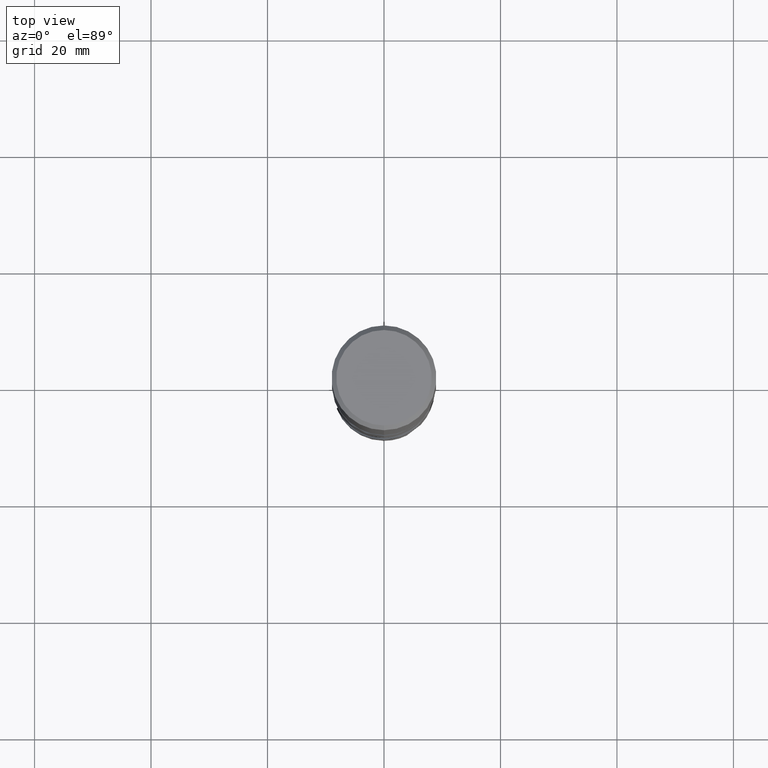
[diagram: clean part render]
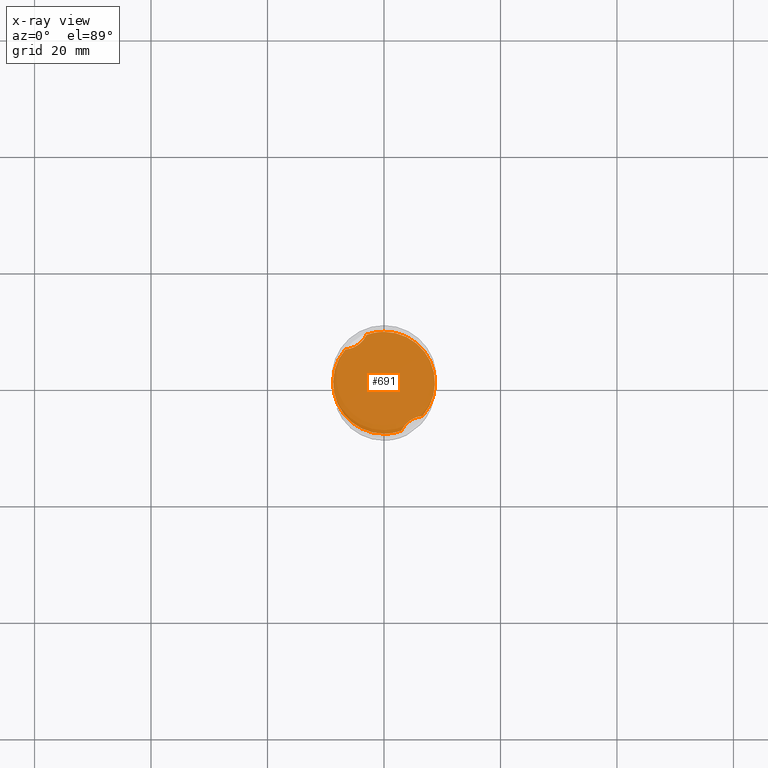
[diagram: x-ray — body ghosted, one internal face saturated and labeled with its STEP entity id]
A machine part, top view, then the same camera in x-ray: the body is ghosted and one INTERNAL B-rep face — a face not visible from any outside direction — is saturated and labeled: STEP entity #691.
In plain terms, the highlighted planar face has unit normal (-0, 0, 1).
Its self-contained STEP definition (entity closure, byte-faithful):
#271=VERTEX_POINT('',#754);
#315=EDGE_CURVE('',#271,#445,#806,.T.);
#349=EDGE_CURVE('',#271,#407,#844,.T.);
#365=EDGE_CURVE('',#389,#445,#860,.T.);
#389=VERTEX_POINT('',#889);
#395=EDGE_CURVE('',#573,#389,#895,.T.);
#407=VERTEX_POINT('',#908);
#445=VERTEX_POINT('',#948);
#567=EDGE_CURVE('',#573,#653,#1080,.T.);
#573=VERTEX_POINT('',#1088);
#653=VERTEX_POINT('',#1174);
#663=EDGE_CURVE('',#407,#653,#1185,.T.);
#691=ADVANCED_FACE('',(#1215),#1216,.T.);
#754=CARTESIAN_POINT('',(-2.97701163631891,8.22788865549491,-50.0));
#806=B_SPLINE_CURVE_WITH_KNOTS('',3,(#1423,#1424,#1425,#1426,#1427,#1428,#1429,#1430,#1431,#1432),.UNSPECIFIED.,.F.,.F.,(4,2,2,2,4),(0.0,1.89437961589908,3.62938960337551,5.38410260870692,7.51281131798792),.UNSPECIFIED.);
#844=CIRCLE('',#1610,8.7499);
#860=CIRCLE('',#1646,8.7499);
#889=CARTESIAN_POINT('',(1.07069657317314E-015,-8.7499,-50.0));
#895=CIRCLE('',#1808,8.7499);
#908=CARTESIAN_POINT('',(-1.07026289224004E-015,8.7499,-50.0));
#948=CARTESIAN_POINT('',(-6.63187349019705,5.70780203055621,-50.0));
#1080=B_SPLINE_CURVE_WITH_KNOTS('',3,(#2807,#2808,#2809,#2810,#2811,#2812,#2813,#2814,#2815,#2816),.UNSPECIFIED.,.F.,.F.,(4,2,2,2,4),(0.0,1.89437961589918,3.62938960337569,5.38410260870717,7.51281131798822),.UNSPECIFIED.);
#1088=CARTESIAN_POINT('',(2.97701163631893,-8.2278886554949,-50.0));
#1174=CARTESIAN_POINT('',(6.63187349019704,-5.70780203055622,-50.0));
#1185=CIRCLE('',#4301,8.7499);
#1215=FACE_OUTER_BOUND('',#5237,.T.);
#1216=PLANE('',#5238);
#1423=CARTESIAN_POINT('',(-2.7419978708764,8.7999,-50.0));
#1424=CARTESIAN_POINT('',(-2.94619092063928,8.20236609440777,-50.0));
#1425=CARTESIAN_POINT('',(-3.25547046504474,7.65088679469313,-49.9999999999774));
#1426=CARTESIAN_POINT('',(-4.05543135956222,6.74677654869634,-49.9999999999774));
#1427=CARTESIAN_POINT('',(-4.51485600838567,6.39739188955216,-50.0000000000013));
#1428=CARTESIAN_POINT('',(-5.55869641553648,5.89073384664052,-50.0000000000013));
#1429=CARTESIAN_POINT('',(-6.12583509665993,5.74459975825155,-50.0000000000002));
#1430=CARTESIAN_POINT('',(-7.41506229825283,5.64931918146912,-50.0000000000002));
#1431=CARTESIAN_POINT('',(-8.12436621678291,5.74970005201506,-50.0));
#1432=CARTESIAN_POINT('',(-8.7999,5.97056682431863,-50.0));
#1610=AXIS2_PLACEMENT_3D('',#5615,#5616,#5617);
#1646=AXIS2_PLACEMENT_3D('',#5624,#5625,#5626);
#1808=AXIS2_PLACEMENT_3D('',#5677,#5678,#5679);
#2807=CARTESIAN_POINT('',(2.74199787087641,-8.7999,-50.0));
#2808=CARTESIAN_POINT('',(2.9461909206393,-8.20236609440774,-50.0));
#2809=CARTESIAN_POINT('',(3.25547046504476,-7.65088679469312,-49.9999999999774));
#2810=CARTESIAN_POINT('',(4.05543135956222,-6.74677654869636,-49.9999999999774));
#2811=CARTESIAN_POINT('',(4.51485600838567,-6.39739188955216,-50.0000000000013));
#2812=CARTESIAN_POINT('',(5.55869641553649,-5.89073384664053,-50.0000000000013));
#2813=CARTESIAN_POINT('',(6.12583509665995,-5.74459975825155,-50.0000000000002));
#2814=CARTESIAN_POINT('',(7.41506229825283,-5.64931918146913,-50.0000000000002));
#2815=CARTESIAN_POINT('',(8.12436621678291,-5.74970005201506,-50.0));
#2816=CARTESIAN_POINT('',(8.7999,-5.97056682431864,-50.0));
#4301=AXIS2_PLACEMENT_3D('',#5938,#5939,#5940);
#5237=EDGE_LOOP('',(#5973,#5974,#5975,#5976,#5977,#5978));
#5238=AXIS2_PLACEMENT_3D('',#5979,#5980,#5981);
#5615=CARTESIAN_POINT('',(0.0,0.0,-50.0));
#5616=DIRECTION('',(0.0,0.0,-1.0));
#5617=DIRECTION('',(0.0,1.0,0.0));
#5624=CARTESIAN_POINT('',(0.0,0.0,-50.0));
#5625=DIRECTION('',(0.0,0.0,-1.0));
#5626=DIRECTION('',(0.0,1.0,0.0));
#5677=CARTESIAN_POINT('',(0.0,0.0,-50.0));
#5678=DIRECTION('',(0.0,0.0,-1.0));
#5679=DIRECTION('',(0.0,1.0,0.0));
#5938=CARTESIAN_POINT('',(0.0,0.0,-50.0));
#5939=DIRECTION('',(0.0,0.0,-1.0));
#5940=DIRECTION('',(0.0,1.0,0.0));
#5973=ORIENTED_EDGE('',*,*,#567,.T.);
#5974=ORIENTED_EDGE('',*,*,#663,.F.);
#5975=ORIENTED_EDGE('',*,*,#349,.F.);
#5976=ORIENTED_EDGE('',*,*,#315,.T.);
#5977=ORIENTED_EDGE('',*,*,#365,.F.);
#5978=ORIENTED_EDGE('',*,*,#395,.F.);
#5979=CARTESIAN_POINT('',(0.0,4.37495,-50.0));
#5980=DIRECTION('',(-0.0,0.0,1.0));
#5981=DIRECTION('',(0.0,-1.0,0.0));